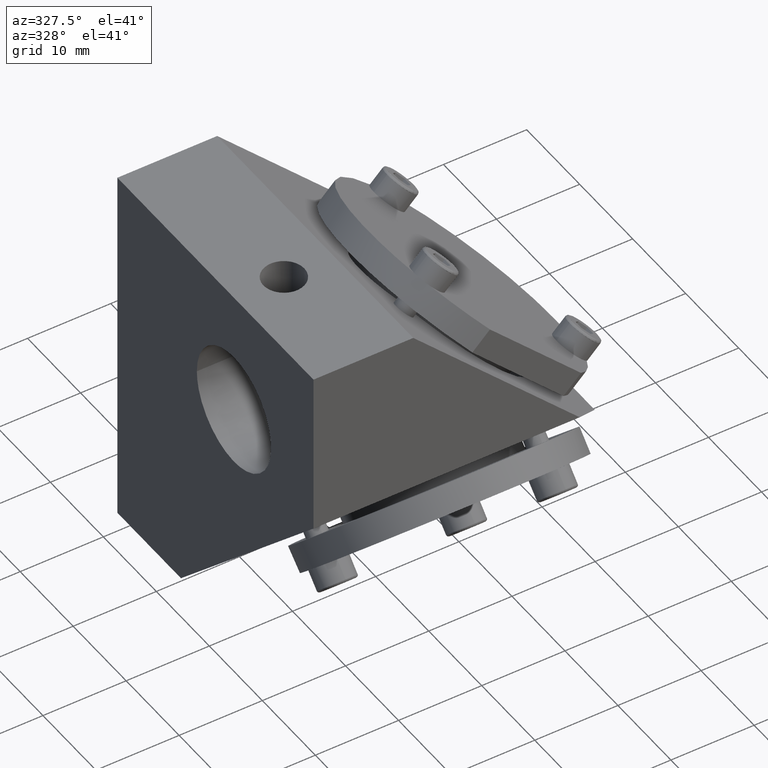
[diagram: clean part render]
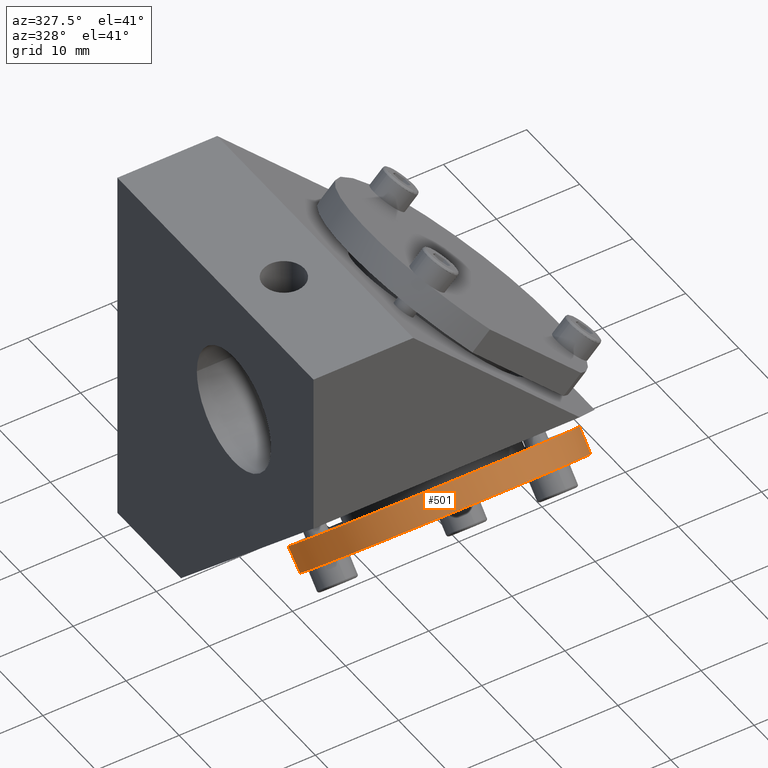
[diagram: same view with one face highlighted and labeled with its STEP entity id]
A machine part, auxiliary view. The second image highlights one B-rep face of the part: STEP entity #501.
In plain terms, the highlighted face is a freeform B-spline surface patch.
Its self-contained STEP definition (entity closure, byte-faithful):
#88=B_SPLINE_SURFACE_WITH_KNOTS('',1,1,((#14346,#14347),(#14348,#14349)),
 .UNSPECIFIED.,.F.,.F.,.F.,(2,2),(2,2),(-0.830481294276325,0.830481294276471),
(0.830481294276418,3.35947534885313),.UNSPECIFIED.);
#90=B_SPLINE_SURFACE_WITH_KNOTS('',1,1,((#14426,#14427),(#14428,#14429)),
 .UNSPECIFIED.,.F.,.F.,.F.,(2,2),(2,2),(-32.8612777170715,10.9537592390239),
(18.9724675358662,55.1669318215806),.UNSPECIFIED.);
#92=B_SPLINE_SURFACE_WITH_KNOTS('',1,1,((#14470,#14471),(#14472,#14473)),
 .UNSPECIFIED.,.F.,.F.,.F.,(2,2),(2,2),(-1.49125696106841,1.49125696106852),
(-3.07303840914307,-0.891256961068519),.UNSPECIFIED.);
#94=B_SPLINE_SURFACE_WITH_KNOTS('',1,1,((#14550,#14551),(#14552,#14553)),
 .UNSPECIFIED.,.F.,.F.,.F.,(2,2),(2,2),(-0.830481294276314,0.830481294276336),
(0.830481294276366,3.35947534885277),.UNSPECIFIED.);
#104=B_SPLINE_SURFACE_WITH_KNOTS('',1,1,((#15004,#15005),(#15006,#15007)),
 .UNSPECIFIED.,.F.,.F.,.F.,(2,2),(2,2),(7.96546289619781,23.8963886885933),
(-7.96546289619779,7.96546289619781),.UNSPECIFIED.);
#105=B_SPLINE_SURFACE_WITH_KNOTS('',1,1,((#15008,#15009),(#15010,#15011)),
 .UNSPECIFIED.,.F.,.F.,.F.,(2,2),(2,2),(-11.2390448508197,33.7171345524592),
(19.5224750540791,58.2234332474397),.UNSPECIFIED.);
#501=ADVANCED_FACE('',(#751),#9201,.T.);
#751=FACE_OUTER_BOUND('',#1021,.T.);
#1021=EDGE_LOOP('',(#1881,#1882,#1883,#1884,#1885,#1886,#1887,#1888,#1889,
#1890));
#1881=ORIENTED_EDGE('',*,*,#7454,.F.);
#1882=ORIENTED_EDGE('',*,*,#7457,.F.);
#1883=ORIENTED_EDGE('',*,*,#7455,.F.);
#1884=ORIENTED_EDGE('',*,*,#7320,.F.);
#1885=ORIENTED_EDGE('',*,*,#7363,.F.);
#1886=ORIENTED_EDGE('',*,*,#7317,.F.);
#1887=ORIENTED_EDGE('',*,*,#7338,.F.);
#1888=ORIENTED_EDGE('',*,*,#7313,.F.);
#1889=ORIENTED_EDGE('',*,*,#7293,.F.);
#1890=ORIENTED_EDGE('',*,*,#7322,.F.);
#2877=PCURVE('',#88,#4207);
#2907=PCURVE('',#90,#4237);
#2911=PCURVE('',#90,#4241);
#2914=PCURVE('',#90,#4244);
#2916=PCURVE('',#90,#4246);
#2934=PCURVE('',#92,#4264);
#2967=PCURVE('',#94,#4297);
#3141=PCURVE('',#104,#4471);
#3143=PCURVE('',#104,#4473);
#3145=PCURVE('',#105,#4475);
#3211=PCURVE('',#9201,#4541);
#3212=PCURVE('',#9201,#4542);
#3213=PCURVE('',#9201,#4543);
#3214=PCURVE('',#9201,#4544);
#3215=PCURVE('',#9201,#4545);
#3216=PCURVE('',#9201,#4546);
#3217=PCURVE('',#9201,#4547);
#3218=PCURVE('',#9201,#4548);
#3219=PCURVE('',#9201,#4549);
#3220=PCURVE('',#9201,#4550);
#4207=DEFINITIONAL_REPRESENTATION('',(#8049),#23564);
#4237=DEFINITIONAL_REPRESENTATION('',(#8076),#23564);
#4241=DEFINITIONAL_REPRESENTATION('',(#8084),#23564);
#4244=DEFINITIONAL_REPRESENTATION('',(#8090),#23564);
#4246=DEFINITIONAL_REPRESENTATION('',(#8092),#23564);
#4264=DEFINITIONAL_REPRESENTATION('',(#8114),#23564);
#4297=DEFINITIONAL_REPRESENTATION('',(#8147),#23564);
#4471=DEFINITIONAL_REPRESENTATION('',(#5681),#23564);
#4473=DEFINITIONAL_REPRESENTATION('',(#5683),#23564);
#4475=DEFINITIONAL_REPRESENTATION('',(#8287),#23564);
#4541=DEFINITIONAL_REPRESENTATION('',(#5731),#23564);
#4542=DEFINITIONAL_REPRESENTATION('',(#5732),#23564);
#4543=DEFINITIONAL_REPRESENTATION('',(#5733),#23564);
#4544=DEFINITIONAL_REPRESENTATION('',(#5734),#23564);
#4545=DEFINITIONAL_REPRESENTATION('',(#5735),#23564);
#4546=DEFINITIONAL_REPRESENTATION('',(#5736),#23564);
#4547=DEFINITIONAL_REPRESENTATION('',(#5737),#23564);
#4548=DEFINITIONAL_REPRESENTATION('',(#5738),#23564);
#4549=DEFINITIONAL_REPRESENTATION('',(#5739),#23564);
#4550=DEFINITIONAL_REPRESENTATION('',(#5740),#23564);
#5681=B_SPLINE_CURVE_WITH_KNOTS('',1,(#18198,#18199),.UNSPECIFIED.,.F.,
 .F.,(2,2),(-3.00000000000001,0.),.UNSPECIFIED.);
#5683=B_SPLINE_CURVE_WITH_KNOTS('',1,(#18204,#18205),.UNSPECIFIED.,.F.,
 .F.,(2,2),(-2.99999999999997,0.),.UNSPECIFIED.);
#5731=B_SPLINE_CURVE_WITH_KNOTS('',1,(#18503,#18504),.UNSPECIFIED.,.F.,
 .F.,(2,2),(-3.00000000000001,0.),.UNSPECIFIED.);
#5732=B_SPLINE_CURVE_WITH_KNOTS('',1,(#18505,#18506),.UNSPECIFIED.,.F.,
 .F.,(2,2),(-84.3594285857803,0.),.UNSPECIFIED.);
#5733=B_SPLINE_CURVE_WITH_KNOTS('',1,(#18507,#18508),.UNSPECIFIED.,.F.,
 .F.,(2,2),(-2.99999999999997,0.),.UNSPECIFIED.);
#5734=B_SPLINE_CURVE_WITH_KNOTS('',1,(#18509,#18510),.UNSPECIFIED.,.F.,
 .F.,(2,2),(0.,7.56722842218146),.UNSPECIFIED.);
#5735=B_SPLINE_CURVE_WITH_KNOTS('',1,(#18511,#18512),.UNSPECIFIED.,.F.,
 .F.,(2,2),(0.,2.20432846483554),.UNSPECIFIED.);
#5736=B_SPLINE_CURVE_WITH_KNOTS('',1,(#18513,#18514),.UNSPECIFIED.,.F.,
 .F.,(2,2),(0.,31.3059931734551),.UNSPECIFIED.);
#5737=B_SPLINE_CURVE_WITH_KNOTS('',1,(#18515,#18516),.UNSPECIFIED.,.F.,
 .F.,(2,2),(0.,2.20432846483646),.UNSPECIFIED.);
#5738=B_SPLINE_CURVE_WITH_KNOTS('',1,(#18517,#18518),.UNSPECIFIED.,.F.,
 .F.,(2,2),(0.,31.3059931734548),.UNSPECIFIED.);
#5739=B_SPLINE_CURVE_WITH_KNOTS('',1,(#18519,#18520),.UNSPECIFIED.,.F.,
 .F.,(2,2),(0.,2.2043284648358),.UNSPECIFIED.);
#5740=B_SPLINE_CURVE_WITH_KNOTS('',1,(#18521,#18522),.UNSPECIFIED.,.F.,
 .F.,(2,2),(0.,7.5672284221813),.UNSPECIFIED.);
#6583=SURFACE_CURVE('',#8048,(#2877,#3219),.PCURVE_S1.);
#6603=SURFACE_CURVE('',#8075,(#2907,#3218),.PCURVE_S1.);
#6607=SURFACE_CURVE('',#8083,(#2911,#3216),.PCURVE_S1.);
#6610=SURFACE_CURVE('',#8089,(#2914,#3214),.PCURVE_S1.);
#6612=SURFACE_CURVE('',#8091,(#2916,#3220),.PCURVE_S1.);
#6628=SURFACE_CURVE('',#8113,(#2934,#3217),.PCURVE_S1.);
#6653=SURFACE_CURVE('',#8146,(#2967,#3215),.PCURVE_S1.);
#6744=SURFACE_CURVE('',#8284,(#3141,#3211),.PCURVE_S1.);
#6745=SURFACE_CURVE('',#8285,(#3143,#3213),.PCURVE_S1.);
#6747=SURFACE_CURVE('',#8286,(#3145,#3212),.PCURVE_S1.);
#7293=EDGE_CURVE('',#8763,#8764,#6583,.T.);
#7313=EDGE_CURVE('',#8764,#8778,#6603,.T.);
#7317=EDGE_CURVE('',#8781,#8782,#6607,.T.);
#7320=EDGE_CURVE('',#8784,#8785,#6610,.T.);
#7322=EDGE_CURVE('',#8786,#8763,#6612,.T.);
#7338=EDGE_CURVE('',#8778,#8781,#6628,.T.);
#7363=EDGE_CURVE('',#8782,#8784,#6653,.T.);
#7454=EDGE_CURVE('',#8884,#8786,#6744,.T.);
#7455=EDGE_CURVE('',#8785,#8885,#6745,.T.);
#7457=EDGE_CURVE('',#8885,#8884,#6747,.T.);
#8048=(
BOUNDED_CURVE()
B_SPLINE_CURVE(2,(#16824,#16825,#16826),.UNSPECIFIED.,.F.,.F.)
B_SPLINE_CURVE_WITH_KNOTS((3,3),(0.,2.2043284648358),.UNSPECIFIED.)
CURVE()
GEOMETRIC_REPRESENTATION_ITEM()
RATIONAL_B_SPLINE_CURVE((1.,0.997628348214286,1.))
REPRESENTATION_ITEM('')
);
#8049=(
BOUNDED_CURVE()
B_SPLINE_CURVE(2,(#16827,#16828,#16829),.UNSPECIFIED.,.F.,.F.)
B_SPLINE_CURVE_WITH_KNOTS((3,3),(0.,2.2043284648358),.UNSPECIFIED.)
CURVE()
GEOMETRIC_REPRESENTATION_ITEM()
RATIONAL_B_SPLINE_CURVE((1.,0.997628348214287,1.))
REPRESENTATION_ITEM('')
);
#8075=(
BOUNDED_CURVE()
B_SPLINE_CURVE(2,(#16977,#16978,#16979,#16980,#16981),.UNSPECIFIED.,.F.,
 .F.)
B_SPLINE_CURVE_WITH_KNOTS((3,2,3),(0.,7.47457268089133,31.3059931734548),
 .UNSPECIFIED.)
CURVE()
GEOMETRIC_REPRESENTATION_ITEM()
RATIONAL_B_SPLINE_CURVE((1.,0.97426559325503,1.,0.731037207884851,1.))
REPRESENTATION_ITEM('')
);
#8076=(
BOUNDED_CURVE()
B_SPLINE_CURVE(2,(#16982,#16983,#16984,#16985,#16986),.UNSPECIFIED.,.F.,
 .F.)
B_SPLINE_CURVE_WITH_KNOTS((3,2,3),(0.,15.6529965867274,31.3059931734548),
 .UNSPECIFIED.)
CURVE()
GEOMETRIC_REPRESENTATION_ITEM()
RATIONAL_B_SPLINE_CURVE((1.,0.882729685203356,1.,0.882729685203356,1.))
REPRESENTATION_ITEM('')
);
#8083=(
BOUNDED_CURVE()
B_SPLINE_CURVE(2,(#17013,#17014,#17015,#17016,#17017),.UNSPECIFIED.,.F.,
 .F.)
B_SPLINE_CURVE_WITH_KNOTS((3,2,3),(0.,15.6529965867275,31.3059931734551),
 .UNSPECIFIED.)
CURVE()
GEOMETRIC_REPRESENTATION_ITEM()
RATIONAL_B_SPLINE_CURVE((1.,0.88272968520335,1.,0.88272968520335,1.))
REPRESENTATION_ITEM('')
);
#8084=(
BOUNDED_CURVE()
B_SPLINE_CURVE(2,(#17018,#17019,#17020,#17021,#17022),.UNSPECIFIED.,.F.,
 .F.)
B_SPLINE_CURVE_WITH_KNOTS((3,2,3),(0.,15.6529965867275,31.3059931734551),
 .UNSPECIFIED.)
CURVE()
GEOMETRIC_REPRESENTATION_ITEM()
RATIONAL_B_SPLINE_CURVE((1.,0.88272968520335,1.,0.88272968520335,1.))
REPRESENTATION_ITEM('')
);
#8089=(
BOUNDED_CURVE()
B_SPLINE_CURVE(2,(#17049,#17050,#17051),.UNSPECIFIED.,.F.,.F.)
B_SPLINE_CURVE_WITH_KNOTS((3,3),(0.,7.56722842218146),.UNSPECIFIED.)
CURVE()
GEOMETRIC_REPRESENTATION_ITEM()
RATIONAL_B_SPLINE_CURVE((1.,0.972169632056691,1.))
REPRESENTATION_ITEM('')
);
#8090=(
BOUNDED_CURVE()
B_SPLINE_CURVE(2,(#17052,#17053,#17054),.UNSPECIFIED.,.F.,.F.)
B_SPLINE_CURVE_WITH_KNOTS((3,3),(0.,7.56722842218146),.UNSPECIFIED.)
CURVE()
GEOMETRIC_REPRESENTATION_ITEM()
RATIONAL_B_SPLINE_CURVE((1.,0.972169632056691,1.))
REPRESENTATION_ITEM('')
);
#8091=(
BOUNDED_CURVE()
B_SPLINE_CURVE(2,(#17059,#17060,#17061),.UNSPECIFIED.,.F.,.F.)
B_SPLINE_CURVE_WITH_KNOTS((3,3),(0.,7.5672284221813),.UNSPECIFIED.)
CURVE()
GEOMETRIC_REPRESENTATION_ITEM()
RATIONAL_B_SPLINE_CURVE((1.,0.972169632056698,1.))
REPRESENTATION_ITEM('')
);
#8092=(
BOUNDED_CURVE()
B_SPLINE_CURVE(2,(#17062,#17063,#17064),.UNSPECIFIED.,.F.,.F.)
B_SPLINE_CURVE_WITH_KNOTS((3,3),(0.,7.5672284221813),.UNSPECIFIED.)
CURVE()
GEOMETRIC_REPRESENTATION_ITEM()
RATIONAL_B_SPLINE_CURVE((1.,0.972169632056698,1.))
REPRESENTATION_ITEM('')
);
#8113=(
BOUNDED_CURVE()
B_SPLINE_CURVE(2,(#17179,#17180,#17181),.UNSPECIFIED.,.F.,.F.)
B_SPLINE_CURVE_WITH_KNOTS((3,3),(0.,2.20432846483646),.UNSPECIFIED.)
CURVE()
GEOMETRIC_REPRESENTATION_ITEM()
RATIONAL_B_SPLINE_CURVE((1.,0.997628348214285,1.))
REPRESENTATION_ITEM('')
);
#8114=(
BOUNDED_CURVE()
B_SPLINE_CURVE(2,(#17182,#17183,#17184),.UNSPECIFIED.,.F.,.F.)
B_SPLINE_CURVE_WITH_KNOTS((3,3),(0.,2.20432846483646),.UNSPECIFIED.)
CURVE()
GEOMETRIC_REPRESENTATION_ITEM()
RATIONAL_B_SPLINE_CURVE((1.,0.997628348214285,1.))
REPRESENTATION_ITEM('')
);
#8146=(
BOUNDED_CURVE()
B_SPLINE_CURVE(2,(#17362,#17363,#17364),.UNSPECIFIED.,.F.,.F.)
B_SPLINE_CURVE_WITH_KNOTS((3,3),(0.,2.20432846483554),.UNSPECIFIED.)
CURVE()
GEOMETRIC_REPRESENTATION_ITEM()
RATIONAL_B_SPLINE_CURVE((1.,0.997628348214279,1.))
REPRESENTATION_ITEM('')
);
#8147=(
BOUNDED_CURVE()
B_SPLINE_CURVE(2,(#17365,#17366,#17367),.UNSPECIFIED.,.F.,.F.)
B_SPLINE_CURVE_WITH_KNOTS((3,3),(0.,2.20432846483554),.UNSPECIFIED.)
CURVE()
GEOMETRIC_REPRESENTATION_ITEM()
RATIONAL_B_SPLINE_CURVE((1.,0.997628348214279,1.))
REPRESENTATION_ITEM('')
);
#8284=(
BOUNDED_CURVE()
B_SPLINE_CURVE(1,(#18196,#18197),.UNSPECIFIED.,.F.,.F.)
B_SPLINE_CURVE_WITH_KNOTS((2,2),(-3.00000000000001,0.),.UNSPECIFIED.)
CURVE()
GEOMETRIC_REPRESENTATION_ITEM()
RATIONAL_B_SPLINE_CURVE((1.,1.))
REPRESENTATION_ITEM('')
);
#8285=(
BOUNDED_CURVE()
B_SPLINE_CURVE(1,(#18202,#18203),.UNSPECIFIED.,.F.,.F.)
B_SPLINE_CURVE_WITH_KNOTS((2,2),(-2.99999999999997,0.),.UNSPECIFIED.)
CURVE()
GEOMETRIC_REPRESENTATION_ITEM()
RATIONAL_B_SPLINE_CURVE((1.,1.))
REPRESENTATION_ITEM('')
);
#8286=(
BOUNDED_CURVE()
B_SPLINE_CURVE(2,(#18210,#18211,#18212,#18213,#18214,#18215,#18216,#18217,
#18218),.UNSPECIFIED.,.F.,.F.)
B_SPLINE_CURVE_WITH_KNOTS((3,2,2,2,3),(-84.3594285857803,-63.2695714393353,
-42.1797142928902,-21.0898571464451,0.),.UNSPECIFIED.)
CURVE()
GEOMETRIC_REPRESENTATION_ITEM()
RATIONAL_B_SPLINE_CURVE((1.,0.790569415042095,1.,0.790569415042095,1.,0.790569415042095,
1.,0.790569415042095,1.))
REPRESENTATION_ITEM('')
);
#8287=(
BOUNDED_CURVE()
B_SPLINE_CURVE(2,(#18219,#18220,#18221,#18222,#18223,#18224,#18225,#18226,
#18227),.UNSPECIFIED.,.F.,.F.)
B_SPLINE_CURVE_WITH_KNOTS((3,2,2,2,3),(-84.3594285857803,-63.2695714393353,
-42.1797142928902,-21.0898571464451,0.),.UNSPECIFIED.)
CURVE()
GEOMETRIC_REPRESENTATION_ITEM()
RATIONAL_B_SPLINE_CURVE((1.,0.790569415042095,1.,0.790569415042095,1.,0.790569415042095,
1.,0.790569415042095,1.))
REPRESENTATION_ITEM('')
);
#8763=VERTEX_POINT('',#15929);
#8764=VERTEX_POINT('',#15930);
#8778=VERTEX_POINT('',#15944);
#8781=VERTEX_POINT('',#15947);
#8782=VERTEX_POINT('',#15948);
#8784=VERTEX_POINT('',#15950);
#8785=VERTEX_POINT('',#15951);
#8786=VERTEX_POINT('',#15952);
#8884=VERTEX_POINT('',#16050);
#8885=VERTEX_POINT('',#16051);
#9201=(
BOUNDED_SURFACE()
B_SPLINE_SURFACE(2,1,((#15174,#15175),(#15176,#15177),(#15178,#15179),(#15180,
#15181),(#15182,#15183),(#15184,#15185),(#15186,#15187),(#15188,#15189),
(#15190,#15191)),.UNSPECIFIED.,.T.,.F.,.F.)
B_SPLINE_SURFACE_WITH_KNOTS((3,2,2,2,3),(2,2),(0.,32.0000000000001,64.,
96.0000000000001,128.),(0.,47.9856081796872),.UNSPECIFIED.)
GEOMETRIC_REPRESENTATION_ITEM()
RATIONAL_B_SPLINE_SURFACE(((1.,1.),(0.707106781186548,0.707106781186548),
(1.,1.),(0.707106781186548,0.707106781186548),(1.,1.),(0.707106781186548,
0.707106781186548),(1.,1.),(0.707106781186548,0.707106781186548),(1.,1.)))
REPRESENTATION_ITEM('')
SURFACE()
);
#14346=CARTESIAN_POINT('',(10.1256738339184,58.0360302316245,20.690387557029));
#14347=CARTESIAN_POINT('',(7.59667977934167,58.0360302316245,20.690387557029));
#14348=CARTESIAN_POINT('',(10.1256738339184,56.8615523219616,19.5159096473661));
#14349=CARTESIAN_POINT('',(7.59667977934167,56.8615523219616,19.5159096473661));
#14426=CARTESIAN_POINT('',(-18.1981089076555,63.1650245273475,25.8193818527521));
#14427=CARTESIAN_POINT('',(17.9963553780589,63.1650245273475,25.8193818527521));
#14428=CARTESIAN_POINT('',(-18.1981089076555,32.1831147777533,-5.1625278968422));
#14429=CARTESIAN_POINT('',(17.9963553780589,32.1831147777533,-5.16252789684218));
#14470=CARTESIAN_POINT('',(-16.4818698779143,46.6195917428874,9.27394906829188));
#14471=CARTESIAN_POINT('',(-14.3000884298397,46.6195917428874,9.27394906829188));
#14472=CARTESIAN_POINT('',(-16.4818698779143,48.7285475622137,11.3829048876182));
#14473=CARTESIAN_POINT('',(-14.3000884298397,48.7285475622137,11.3829048876182));
#14550=CARTESIAN_POINT('',(10.1256738339183,38.4865869831394,1.14094430854384));
#14551=CARTESIAN_POINT('',(7.59667977934193,38.4865869831394,1.14094430854384));
#14552=CARTESIAN_POINT('',(10.1256738339183,37.3121090734766,-0.0335336011188998));
#14553=CARTESIAN_POINT('',(7.59667977934193,37.3121090734766,-0.033533601118898));
#15004=CARTESIAN_POINT('',(14.8801500209159,40.7692669281326,1.3023039099774));
#15005=CARTESIAN_POINT('',(14.8801500209159,40.7692669281326,17.233229702373));
#15006=CARTESIAN_POINT('',(14.8801500209159,56.7001927205281,1.3023039099774));
#15007=CARTESIAN_POINT('',(14.8801500209159,56.7001927205281,17.233229702373));
#15008=CARTESIAN_POINT('',(-18.4449298285307,33.9009803399615,-7.68730302175342));
#15009=CARTESIAN_POINT('',(20.2560283648299,33.9009803399615,-7.68730302175342));
#15010=CARTESIAN_POINT('',(-18.4449298285307,65.6897996522589,24.1015162905441));
#15011=CARTESIAN_POINT('',(20.2560283648299,65.6897996522589,24.1015162905441));
#15174=CARTESIAN_POINT('',(16.880150020916,31.9373615116181,26.0651351188874));
#15175=CARTESIAN_POINT('',(16.880150020916,65.8683104548356,-7.86581382433012));
#15176=CARTESIAN_POINT('',(16.880150020916,20.6236530126333,14.7514266199026));
#15177=CARTESIAN_POINT('',(16.880150020916,54.5546019558508,-19.1795223233149));
#15178=CARTESIAN_POINT('',(0.880150020915966,20.6236530126333,14.7514266199026));
#15179=CARTESIAN_POINT('',(0.88015002091596,54.5546019558508,-19.1795223233149));
#15180=CARTESIAN_POINT('',(-15.119849979084,20.6236530126333,14.7514266199026));
#15181=CARTESIAN_POINT('',(-15.1198499790841,54.5546019558508,-19.1795223233149));
#15182=CARTESIAN_POINT('',(-15.119849979084,31.9373615116181,26.0651351188873));
#15183=CARTESIAN_POINT('',(-15.1198499790841,65.8683104548356,-7.86581382433011));
#15184=CARTESIAN_POINT('',(-15.119849979084,43.2510700106029,37.3788436178721));
#15185=CARTESIAN_POINT('',(-15.1198499790841,77.1820189538203,3.44789467465467));
#15186=CARTESIAN_POINT('',(0.880150020915957,43.2510700106029,37.3788436178721));
#15187=CARTESIAN_POINT('',(0.880150020915963,77.1820189538203,3.44789467465467));
#15188=CARTESIAN_POINT('',(16.880150020916,43.2510700106029,37.3788436178721));
#15189=CARTESIAN_POINT('',(16.880150020916,77.1820189538203,3.44789467465467));
#15190=CARTESIAN_POINT('',(16.880150020916,31.9373615116181,26.0651351188874));
#15191=CARTESIAN_POINT('',(16.880150020916,65.8683104548356,-7.86581382433012));
#15929=CARTESIAN_POINT('',(9.81492432937033,57.0594254811002,19.7137828065047));
#15930=CARTESIAN_POINT('',(7.90742928388973,57.8381570724859,20.4925143978904));
#15944=CARTESIAN_POINT('',(-15.0819035505126,48.4528012439365,11.107158569341));
#15947=CARTESIAN_POINT('',(-15.0819035505126,46.8953380611646,9.54969538656907));
#15948=CARTESIAN_POINT('',(7.90742928388997,37.5099822326152,0.164339558019649));
#15950=CARTESIAN_POINT('',(9.81492432937031,38.2887138240008,0.943071149405272));
#15951=CARTESIAN_POINT('',(14.880150020916,42.1968440774989,4.85120140290336));
#15952=CARTESIAN_POINT('',(14.8801500209159,53.1512952276022,15.8056525530067));
#16050=CARTESIAN_POINT('',(14.8801500209159,55.2726155711618,13.684332209447));
#16051=CARTESIAN_POINT('',(14.8801500209159,44.3181644210585,2.72988105934368));
#16824=CARTESIAN_POINT('',(9.81492432937033,57.0594254811002,19.7137828065047));
#16825=CARTESIAN_POINT('',(8.89916834003195,57.4953212124833,20.1496785378879));
#16826=CARTESIAN_POINT('',(7.90742928388973,57.8381570724859,20.4925143978904));
#16827=CARTESIAN_POINT('',(0.55064638899309,1.14123079882448));
#16828=CARTESIAN_POINT('',(-0.0658032661094898,2.05698678816286));
#16829=CARTESIAN_POINT('',(-0.550646388992945,3.04872584430507));
#16977=CARTESIAN_POINT('',(7.90742928388973,57.8381570724859,20.4925143978904));
#16978=CARTESIAN_POINT('',(4.5818608213342,58.9877781515352,21.6421354769398));
#16979=CARTESIAN_POINT('',(0.880150020915956,58.9877781515352,21.6421354769398));
#16980=CARTESIAN_POINT('',(-14.0539757471435,58.9877781515352,21.6421354769398));
#16981=CARTESIAN_POINT('',(-15.0819035505126,48.4528012439365,11.107158569341));
#16982=CARTESIAN_POINT('',(-25.3279495174423,45.0780057274114));
#16983=CARTESIAN_POINT('',(-29.0686032811596,37.4265567166032));
#16984=CARTESIAN_POINT('',(-24.8101656995749,30.0507264644377));
#16985=CARTESIAN_POINT('',(-20.5517281179902,22.6748962122723));
#16986=CARTESIAN_POINT('',(-12.0550520170104,22.0886728930091));
#17013=CARTESIAN_POINT('',(-15.0819035505126,46.8953380611646,9.54969538656907));
#17014=CARTESIAN_POINT('',(-14.4956802312495,40.8872807726159,3.54163809802036));
#17015=CARTESIAN_POINT('',(-7.11984997908395,37.8761106814177,0.530468006822169));
#17016=CARTESIAN_POINT('',(0.255980273081633,34.8649405902195,-2.48070208437603));
#17017=CARTESIAN_POINT('',(7.90742928388997,37.5099822326152,0.164339558019649));
#17018=CARTESIAN_POINT('',(-9.85246646103755,22.0886728930091));
#17019=CARTESIAN_POINT('',(-1.35579036005745,22.6748962122722));
#17020=CARTESIAN_POINT('',(2.90264722152725,30.0507264644378));
#17021=CARTESIAN_POINT('',(7.16108480311196,37.4265567166033));
#17022=CARTESIAN_POINT('',(3.4204310393944,45.0780057274117));
#17049=CARTESIAN_POINT('',(9.81492432937031,38.2887138240008,0.943071149405272));
#17050=CARTESIAN_POINT('',(13.0134901892383,39.8112167845019,2.46557410990639));
#17051=CARTESIAN_POINT('',(14.880150020916,42.1968440774989,4.85120140290336));
#17052=CARTESIAN_POINT('',(2.31913826140847,46.985500772892));
#17053=CARTESIAN_POINT('',(0.165993925914606,50.18406663276));
#17054=CARTESIAN_POINT('',(-3.20779254660913,52.0507264644377));
#17059=CARTESIAN_POINT('',(14.8801500209159,53.1512952276022,15.8056525530067));
#17060=CARTESIAN_POINT('',(13.0134901892382,55.5369225205991,18.1912798460036));
#17061=CARTESIAN_POINT('',(9.81492432937033,57.0594254811002,19.7137828065047));
#17062=CARTESIAN_POINT('',(-18.6997259314388,52.0507264644376));
#17063=CARTESIAN_POINT('',(-22.0735124039623,50.1840666327599));
#17064=CARTESIAN_POINT('',(-24.2266567394563,46.985500772892));
#17179=CARTESIAN_POINT('',(-15.0819035505126,48.4528012439365,11.107158569341));
#17180=CARTESIAN_POINT('',(-15.1578866173165,47.6740696525506,10.328426977955));
#17181=CARTESIAN_POINT('',(-15.0819035505126,46.8953380611646,9.54969538656907));
#17182=CARTESIAN_POINT('',(1.10129277798647,-1.6730720817414));
#17183=CARTESIAN_POINT('',(7.12231901821899E-14,-1.7490551485453));
#17184=CARTESIAN_POINT('',(-1.10129277798636,-1.6730720817414));
#17362=CARTESIAN_POINT('',(7.90742928388997,37.5099822326152,0.164339558019649));
#17363=CARTESIAN_POINT('',(8.8991683400321,37.8528180926176,0.507175418022075));
#17364=CARTESIAN_POINT('',(9.81492432937031,38.2887138240008,0.943071149405272));
#17365=CARTESIAN_POINT('',(0.550646388992972,3.04872584430474));
#17366=CARTESIAN_POINT('',(0.0658032661097004,2.05698678816261));
#17367=CARTESIAN_POINT('',(-0.550646388992947,1.1412307988244));
#18196=CARTESIAN_POINT('',(14.8801500209159,55.2726155711618,13.684332209447));
#18197=CARTESIAN_POINT('',(14.8801500209159,53.1512952276022,15.8056525530067));
#18198=CARTESIAN_POINT('',(22.468811539227,4.41656540327181));
#18199=CARTESIAN_POINT('',(20.3474911956674,6.53788574683151));
#18202=CARTESIAN_POINT('',(14.880150020916,42.1968440774989,4.85120140290336));
#18203=CARTESIAN_POINT('',(14.8801500209159,44.3181644210585,2.72988105934368));
#18204=CARTESIAN_POINT('',(9.3930400455641,-4.41656540327183));
#18205=CARTESIAN_POINT('',(11.5143603891237,-6.53788574683149));
#18210=CARTESIAN_POINT('',(14.8801500209159,44.3181644210585,2.72988105934368));
#18211=CARTESIAN_POINT('',(8.88015002091601,36.6500486159862,-4.93823474572861));
#18212=CARTESIAN_POINT('',(-3.11984997908392,38.8409388460069,-2.74734451570797));
#18213=CARTESIAN_POINT('',(-15.1198499790839,41.0318290760275,-0.556454285687336));
#18214=CARTESIAN_POINT('',(-15.1198499790839,49.7953899961101,8.20710663439529));
#18215=CARTESIAN_POINT('',(-15.119849979084,58.5589509161928,16.970667554478));
#18216=CARTESIAN_POINT('',(-3.11984997908402,60.7498411462134,19.1615577844986));
#18217=CARTESIAN_POINT('',(8.88015002091591,62.9407313762341,21.3524480145193));
#18218=CARTESIAN_POINT('',(14.8801500209159,55.2726155711618,13.684332209447));
#18219=CARTESIAN_POINT('',(3.49307815840493,52.8475549035257));
#18220=CARTESIAN_POINT('',(-7.35127521097577,46.8475549035258));
#18221=CARTESIAN_POINT('',(-4.25288853400987,34.8475549035258));
#18222=CARTESIAN_POINT('',(-1.15450185704398,22.8475549035259));
#18223=CARTESIAN_POINT('',(11.2390448508197,22.8475549035259));
#18224=CARTESIAN_POINT('',(23.6325915586834,22.8475549035258));
#18225=CARTESIAN_POINT('',(26.7309782356493,34.8475549035258));
#18226=CARTESIAN_POINT('',(29.8293649126153,46.8475549035257));
#18227=CARTESIAN_POINT('',(18.9850115432346,52.8475549035257));
#18503=CARTESIAN_POINT('',(117.444190467351,25.2550660800137));
#18504=CARTESIAN_POINT('',(117.444190467351,22.2550660800137));
#18505=CARTESIAN_POINT('',(10.5558095326494,25.2550660800137));
#18506=CARTESIAN_POINT('',(117.444190467351,25.2550660800137));
#18507=CARTESIAN_POINT('',(10.5558095326493,22.2550660800137));
#18508=CARTESIAN_POINT('',(10.5558095326494,25.2550660800137));
#18509=CARTESIAN_POINT('',(19.7374854825642,22.2550660800137));
#18510=CARTESIAN_POINT('',(10.5558095326493,22.2550660800137));
#18511=CARTESIAN_POINT('',(22.4455910141365,22.2550660800137));
#18512=CARTESIAN_POINT('',(19.7374854825642,22.2550660800137));
#18513=CARTESIAN_POINT('',(62.4626294800954,22.2550660800137));
#18514=CARTESIAN_POINT('',(22.4455910141365,22.2550660800137));
#18515=CARTESIAN_POINT('',(65.5373705199049,22.2550660800137));
#18516=CARTESIAN_POINT('',(62.4626294800954,22.2550660800137));
#18517=CARTESIAN_POINT('',(105.554408985863,22.2550660800137));
#18518=CARTESIAN_POINT('',(65.5373705199049,22.2550660800137));
#18519=CARTESIAN_POINT('',(108.262514517436,22.2550660800137));
#18520=CARTESIAN_POINT('',(105.554408985863,22.2550660800137));
#18521=CARTESIAN_POINT('',(117.444190467351,22.2550660800137));
#18522=CARTESIAN_POINT('',(108.262514517436,22.2550660800137));
#23564=(
GEOMETRIC_REPRESENTATION_CONTEXT(2)
PARAMETRIC_REPRESENTATION_CONTEXT()
REPRESENTATION_CONTEXT('pspace','')
);